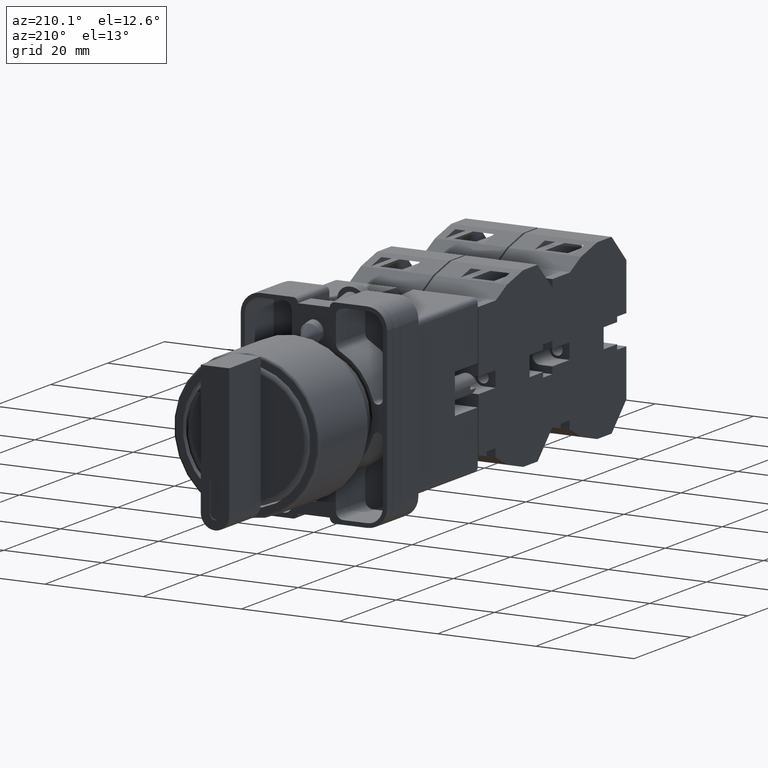
[diagram: clean part render]
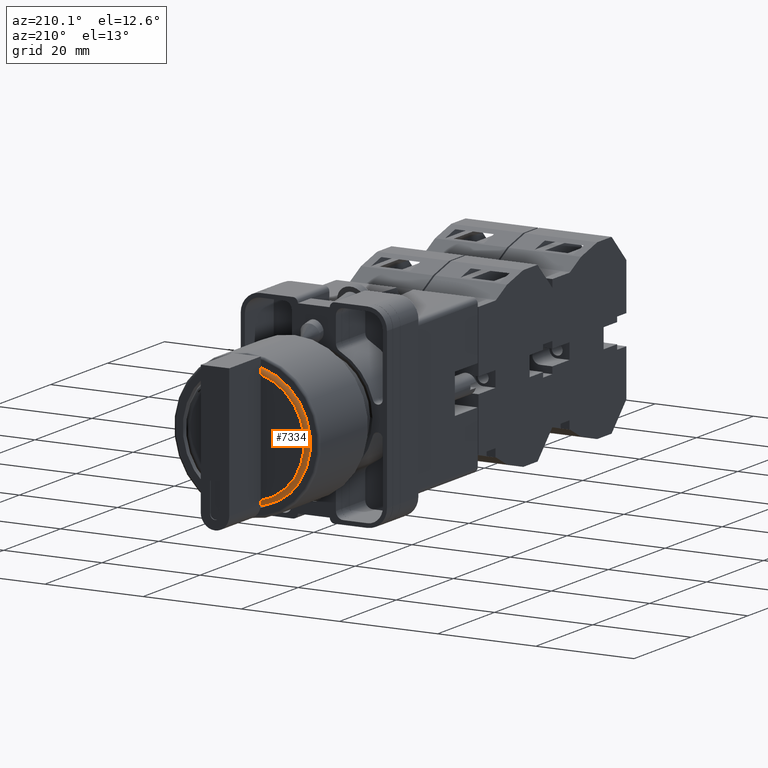
[diagram: same view with one face highlighted and labeled with its STEP entity id]
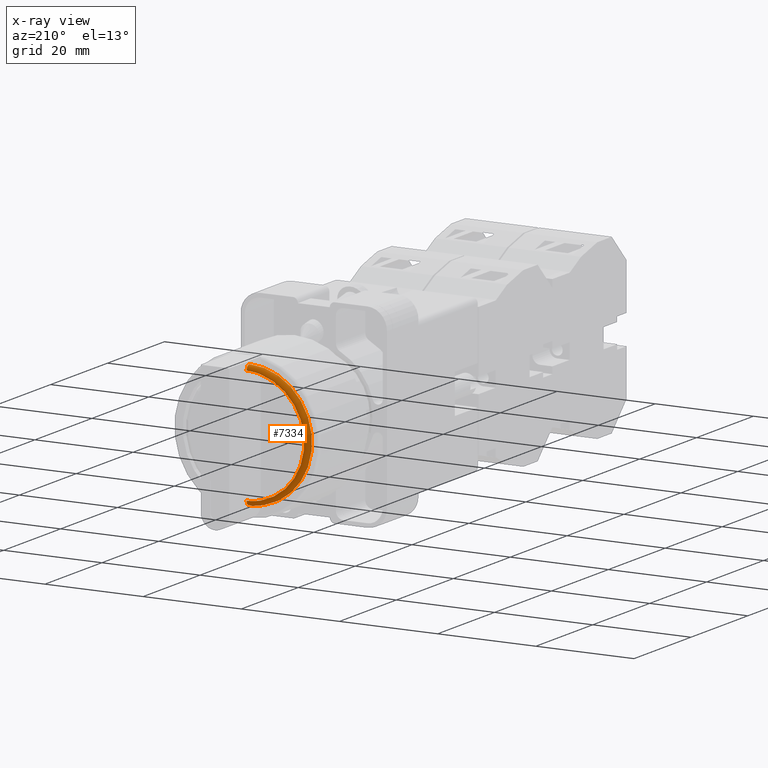
[diagram: x-ray of the same camera — body ghosted, the highlighted face saturated]
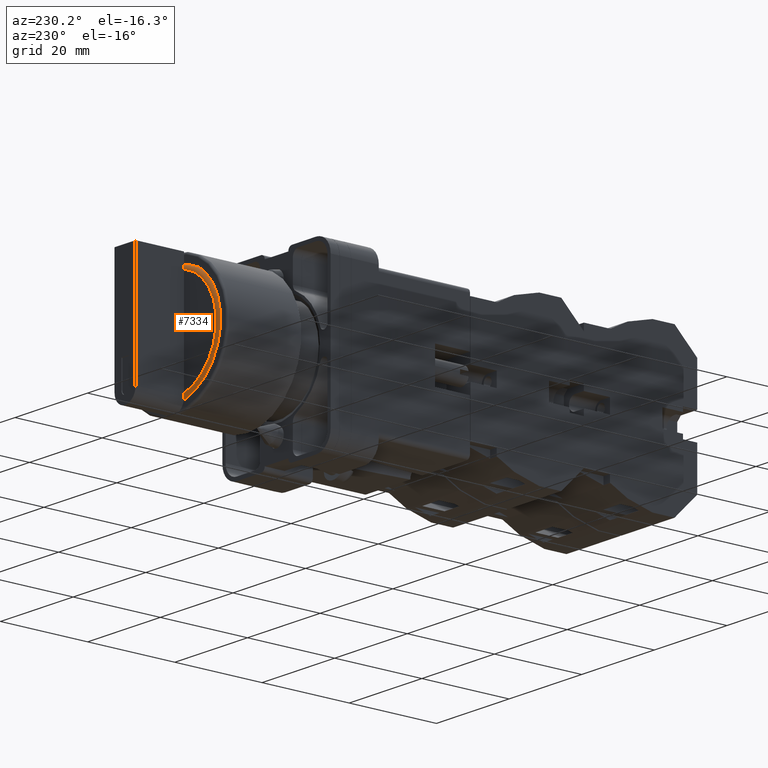
[diagram: same view with one face highlighted and labeled with its STEP entity id]
A machine part, auxiliary view. The second image highlights one B-rep face of the part: STEP entity #7334.
The next image is the same camera in x-ray: the body ghosted, the highlighted face saturated — about 0% of this face is hidden behind the body in this view.
A second angle (auxiliary view) of the same face is appended — the face is thin or edge-on in the first view.
In plain terms, the highlighted toroidal blend (fillet) surface has major radius 11.75 mm and minor (blend) radius 1 mm.
Its self-contained STEP definition (entity closure, byte-faithful):
#205 = AXIS2_PLACEMENT_3D ( 'NONE', #11410, #1719, #1420 ) ;
#551 = ORIENTED_EDGE ( 'NONE', *, *, #4407, .F. ) ;
#641 = CIRCLE ( 'NONE', #17986, 0.4625984251968504000 ) ;
#1000 = CARTESIAN_POINT ( 'NONE',  ( 0.0000000000000000000, 1.074803149606299100, 0.5019685039370078700 ) ) ;
#1119 = EDGE_CURVE ( 'NONE', #3469, #15287, #9570, .T. ) ;
#1228 = EDGE_CURVE ( 'NONE', #15287, #15885, #7845, .T. ) ;
#1343 = CARTESIAN_POINT ( 'NONE',  ( 5.665196807079291400E-017, 1.074803149606299100, -0.4625984251968504000 ) ) ;
#1420 = DIRECTION ( 'NONE',  ( 0.0000000000000000000, 0.0000000000000000000, 1.000000000000000000 ) ) ;
#1719 = DIRECTION ( 'NONE',  ( 0.0000000000000000000, 1.000000000000000000, 0.0000000000000000000 ) ) ;
#2560 = DIRECTION ( 'NONE',  ( 0.0000000000000000000, 1.000000000000000000, 0.0000000000000000000 ) ) ;
#2681 = DIRECTION ( 'NONE',  ( -0.0000000000000000000, -1.000000000000000000, -0.0000000000000000000 ) ) ;
#2761 = DIRECTION ( 'NONE',  ( 1.224646799147351500E-016, 0.0000000000000000000, -1.000000000000000000 ) ) ;
#2816 = CIRCLE ( 'NONE', #14901, 0.5019685039370078700 ) ;
#3469 = VERTEX_POINT ( 'NONE', #13300 ) ;
#4137 = ORIENTED_EDGE ( 'NONE', *, *, #1228, .F. ) ;
#4251 = AXIS2_PLACEMENT_3D ( 'NONE', #8176, #9566, #10970 ) ;
#4407 = EDGE_CURVE ( 'NONE', #15885, #11458, #641, .T. ) ;
#4819 = DIRECTION ( 'NONE',  ( -1.000000000000000000, 0.0000000000000000000, 0.0000000000000000000 ) ) ;
#5351 = ORIENTED_EDGE ( 'NONE', *, *, #1119, .F. ) ;
#6055 = DIRECTION ( 'NONE',  ( 0.0000000000000000000, 0.0000000000000000000, 1.000000000000000000 ) ) ;
#6138 = EDGE_LOOP ( 'NONE', ( #16544, #17753, #10185, #551, #4137, #5351 ) ) ;
#7334 = ADVANCED_FACE ( 'NONE', ( #10448 ), #14108, .T. ) ;
#7638 = DIRECTION ( 'NONE',  ( 0.0000000000000000000, 1.000000000000000000, 0.0000000000000000000 ) ) ;
#7705 = AXIS2_PLACEMENT_3D ( 'NONE', #8408, #2560, #6055 ) ;
#7845 = CIRCLE ( 'NONE', #7705, 0.4625984251968504000 ) ;
#8176 = CARTESIAN_POINT ( 'NONE',  ( 0.0000000000000000000, 1.074803149606299100, 0.0000000000000000000 ) ) ;
#8408 = CARTESIAN_POINT ( 'NONE',  ( 0.0000000000000000000, 1.114173228346456700, 0.0000000000000000000 ) ) ;
#8575 = EDGE_CURVE ( 'NONE', #13229, #16764, #2816, .T. ) ;
#9566 = DIRECTION ( 'NONE',  ( 0.0000000000000000000, 1.000000000000000000, 0.0000000000000000000 ) ) ;
#9570 = CIRCLE ( 'NONE', #205, 0.4625984251968504000 ) ;
#9846 = CIRCLE ( 'NONE', #12886, 0.03937007874015751400 ) ;
#9866 = AXIS2_PLACEMENT_3D ( 'NONE', #1343, #11059, #2761 ) ;
#10175 = CARTESIAN_POINT ( 'NONE',  ( -0.1141732283464565000, 1.114173228346456700, -0.4482876051415585200 ) ) ;
#10185 = ORIENTED_EDGE ( 'NONE', *, *, #15969, .T. ) ;
#10448 = FACE_OUTER_BOUND ( 'NONE', #6138, .T. ) ;
#10970 = DIRECTION ( 'NONE',  ( 0.0000000000000000000, 0.0000000000000000000, 1.000000000000000000 ) ) ;
#10983 = CARTESIAN_POINT ( 'NONE',  ( 0.0000000000000000000, 1.074803149606299100, 0.0000000000000000000 ) ) ;
#11059 = DIRECTION ( 'NONE',  ( 1.000000000000000000, -0.0000000000000000000, 1.224646799147353200E-016 ) ) ;
#11410 = CARTESIAN_POINT ( 'NONE',  ( 0.0000000000000000000, 1.114173228346456700, 0.0000000000000000000 ) ) ;
#11458 = VERTEX_POINT ( 'NONE', #13520 ) ;
#12314 = DIRECTION ( 'NONE',  ( 0.0000000000000000000, 0.0000000000000000000, 1.000000000000000000 ) ) ;
#12886 = AXIS2_PLACEMENT_3D ( 'NONE', #13076, #4819, #14485 ) ;
#13076 = CARTESIAN_POINT ( 'NONE',  ( 0.0000000000000000000, 1.074803149606299100, 0.4625984251968504000 ) ) ;
#13229 = VERTEX_POINT ( 'NONE', #1000 ) ;
#13300 = CARTESIAN_POINT ( 'NONE',  ( 5.906269011635857500E-017, 1.114173228346456700, -0.4625984251968504000 ) ) ;
#13520 = CARTESIAN_POINT ( 'NONE',  ( 0.0000000000000000000, 1.114173228346456700, 0.4625984251968504000 ) ) ;
#14108 = TOROIDAL_SURFACE ( 'NONE', #4251, 0.4625984251968504000, 0.03937007874015748000 ) ;
#14171 = CIRCLE ( 'NONE', #9866, 0.03937007874015751400 ) ;
#14313 = CARTESIAN_POINT ( 'NONE',  ( -0.1141732283464566000, 1.114173228346456700, 0.4482876051415585200 ) ) ;
#14485 = DIRECTION ( 'NONE',  ( 0.0000000000000000000, 0.0000000000000000000, 1.000000000000000000 ) ) ;
#14901 = AXIS2_PLACEMENT_3D ( 'NONE', #10983, #2681, #12314 ) ;
#15112 = CARTESIAN_POINT ( 'NONE',  ( 6.147341216192422300E-017, 1.074803149606299100, -0.5019685039370078700 ) ) ;
#15287 = VERTEX_POINT ( 'NONE', #10175 ) ;
#15685 = EDGE_CURVE ( 'NONE', #16764, #3469, #14171, .T. ) ;
#15885 = VERTEX_POINT ( 'NONE', #14313 ) ;
#15912 = CARTESIAN_POINT ( 'NONE',  ( 0.0000000000000000000, 1.114173228346456700, 0.0000000000000000000 ) ) ;
#15969 = EDGE_CURVE ( 'NONE', #13229, #11458, #9846, .T. ) ;
#16544 = ORIENTED_EDGE ( 'NONE', *, *, #15685, .F. ) ;
#16764 = VERTEX_POINT ( 'NONE', #15112 ) ;
#17282 = DIRECTION ( 'NONE',  ( 0.0000000000000000000, 0.0000000000000000000, 1.000000000000000000 ) ) ;
#17753 = ORIENTED_EDGE ( 'NONE', *, *, #8575, .F. ) ;
#17986 = AXIS2_PLACEMENT_3D ( 'NONE', #15912, #7638, #17282 ) ;